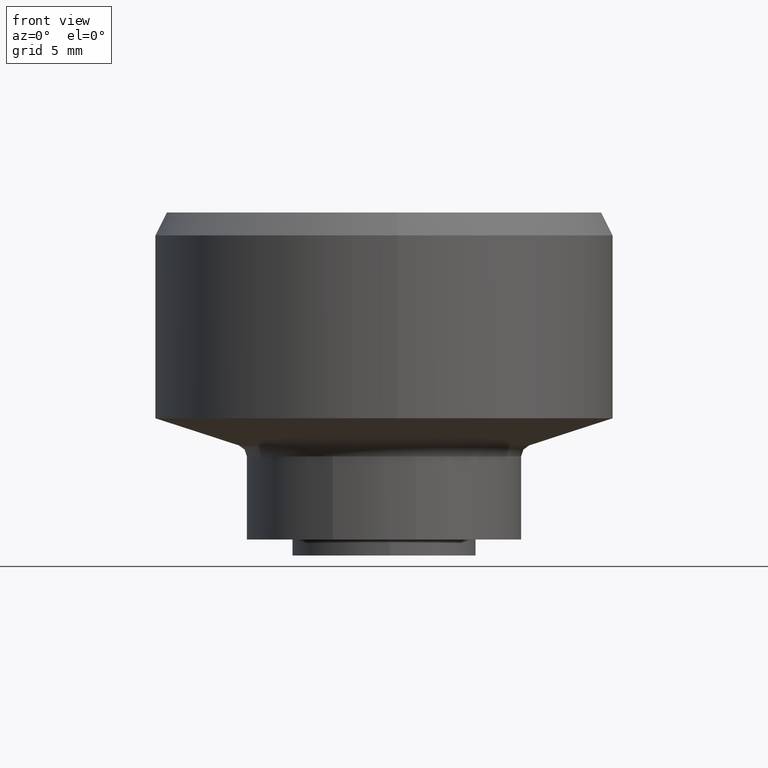
[diagram: clean part render]
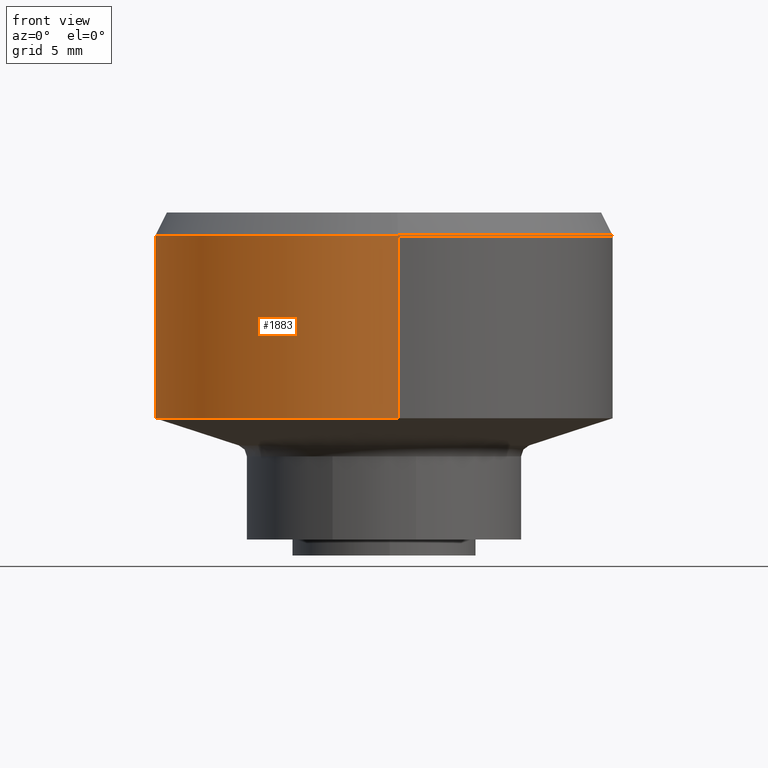
[diagram: same view with one face highlighted and labeled with its STEP entity id]
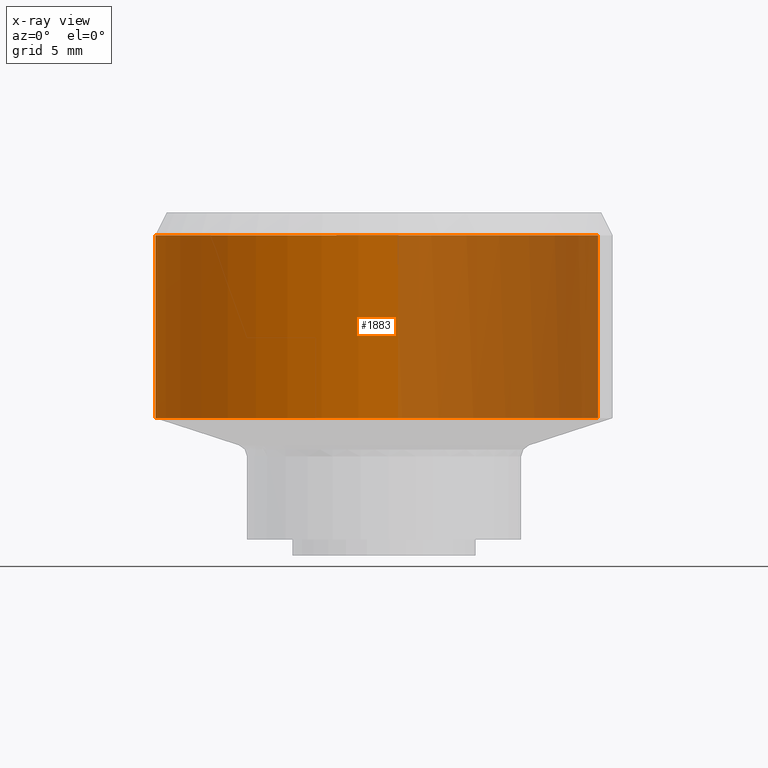
[diagram: x-ray of the same camera — body ghosted, the highlighted face saturated]
A machine part, front view. The second image highlights one B-rep face of the part: STEP entity #1883.
The next image is the same camera in x-ray: the body ghosted, the highlighted face saturated — about 45% of this face is hidden behind the body in this view.
In plain terms, the highlighted face is a freeform B-spline surface patch.
Its self-contained STEP definition (entity closure, byte-faithful):
#1517=CARTESIAN_POINT('',(-10.0,0.0,6.0));
#1518=VERTEX_POINT('',#1517);
#1519=CARTESIAN_POINT('',(-2.503800040549187,9.681476403780438,6.000000000000188));
#1520=VERTEX_POINT('',#1519);
#1521=CARTESIAN_POINT('',(-10.0,0.0,6.0));
#1522=CARTESIAN_POINT('',(-10.0,7.742827278410307,5.999999999999999));
#1523=CARTESIAN_POINT('',(-2.503800040549187,9.681476403780438,6.000000000000188));
#1531=(BOUNDED_CURVE()B_SPLINE_CURVE(2,(#1521,#1522,#1523),.UNSPECIFIED.,.F.,.U.)B_SPLINE_CURVE_WITH_KNOTS((3,3),(0.0,0.207273770289423),.UNSPECIFIED.)CURVE()GEOMETRIC_REPRESENTATION_ITEM()RATIONAL_B_SPLINE_CURVE((1.0,0.757163672977323,0.916996154476451))REPRESENTATION_ITEM(''));
#1532=EDGE_CURVE('',#1518,#1520,#1531,.T.);
#1610=CARTESIAN_POINT('',(0.610484965659253,-9.981348010499573,6.000000000000002));
#1611=VERTEX_POINT('',#1610);
#1625=CARTESIAN_POINT('',(0.610484965659253,-9.981348010499573,6.000000000000002));
#1626=CARTESIAN_POINT('',(0.305527202091767,-10.0,6.0));
#1627=CARTESIAN_POINT('',(0.0,-10.0,6.0));
#1628=CARTESIAN_POINT('',(-10.000000000000002,-10.000000000000002,6.0));
#1629=CARTESIAN_POINT('',(-10.0,0.0,6.0));
#1637=(BOUNDED_CURVE()B_SPLINE_CURVE(2,(#1625,#1626,#1627,#1628,#1629),.UNSPECIFIED.,.F.,.U.)B_SPLINE_CURVE_WITH_KNOTS((3,2,3),(0.739332977097980,0.750000000000000,1.0),.UNSPECIFIED.)CURVE()GEOMETRIC_REPRESENTATION_ITEM()RATIONAL_B_SPLINE_CURVE((0.976072073512466,0.987502805308283,1.0,0.707106781186548,1.0))REPRESENTATION_ITEM(''));
#1638=EDGE_CURVE('',#1611,#1518,#1637,.T.);
#1661=CARTESIAN_POINT('',(9.361437562104159,3.516175019932858,6.000000000000001));
#1662=VERTEX_POINT('',#1661);
#1663=CARTESIAN_POINT('',(-2.503800040549187,9.681476403780438,6.000000000000188));
#1664=CARTESIAN_POINT('',(-1.272160680015326,10.000000000000002,6.000000000000001));
#1665=CARTESIAN_POINT('',(0.0,10.0,6.0));
#1666=CARTESIAN_POINT('',(6.926099690407489,10.0,6.0));
#1667=CARTESIAN_POINT('',(9.361437562104161,3.516175019932858,6.000000000000001));
#1675=(BOUNDED_CURVE()B_SPLINE_CURVE(2,(#1663,#1664,#1665,#1666,#1667),.UNSPECIFIED.,.F.,.U.)B_SPLINE_CURVE_WITH_KNOTS((3,2,3),(0.207273770289423,0.250000000000000,0.440284250603832),.UNSPECIFIED.)CURVE()GEOMETRIC_REPRESENTATION_ITEM()RATIONAL_B_SPLINE_CURVE((0.916996154476451,0.949943108209225,1.0,0.777068133404552,0.893499652175730))REPRESENTATION_ITEM(''));
#1676=EDGE_CURVE('',#1520,#1662,#1675,.T.);
#1759=CARTESIAN_POINT('',(9.361437409540869,3.516175426116772,14.000000000000011));
#1760=VERTEX_POINT('',#1759);
#1776=CARTESIAN_POINT('',(0.610485173869379,-9.981347883809157,14.000000454971101));
#1777=VERTEX_POINT('',#1776);
#1791=CARTESIAN_POINT('',(0.610485173869379,-9.981347883809157,14.000000454971101));
#1792=CARTESIAN_POINT('',(0.610484965659253,-9.981348010499573,6.000000000000002));
#1793=QUASI_UNIFORM_CURVE('',1,(#1791,#1792),.UNSPECIFIED.,.F.,.U.);
#1794=EDGE_CURVE('',#1777,#1611,#1793,.T.);
#1799=CARTESIAN_POINT('',(9.361437409540869,3.516175426116772,14.000000000000011));
#1800=CARTESIAN_POINT('',(9.361437562104159,3.516175019932858,6.000000000000001));
#1801=QUASI_UNIFORM_CURVE('',1,(#1799,#1800),.UNSPECIFIED.,.F.,.U.);
#1802=EDGE_CURVE('',#1760,#1662,#1801,.T.);
#1807=CARTESIAN_POINT('',(0.610485395348570,-9.981347984218667,14.199999999999999));
#1808=CARTESIAN_POINT('',(-9.370862588870097,-10.591833379567237,14.200000000000006));
#1809=CARTESIAN_POINT('',(-9.981347984218667,-0.610485395348570,14.199999999999999));
#1810=CARTESIAN_POINT('',(-10.591833379567237,9.370862588870097,14.200000000000006));
#1811=CARTESIAN_POINT('',(-0.610485395348570,9.981347984218667,14.199999999999999));
#1812=CARTESIAN_POINT('',(6.763695818030652,10.432372228693419,14.199999999999999));
#1813=CARTESIAN_POINT('',(9.361435787766570,3.516179743915722,14.200000000000010));
#1814=CARTESIAN_POINT('',(0.610485395348570,-9.981347984218667,5.795000000000000));
#1815=CARTESIAN_POINT('',(-9.370862588870097,-10.591833379567237,5.795000000000000));
#1816=CARTESIAN_POINT('',(-9.981347984218667,-0.610485395348570,5.795000000000000));
#1817=CARTESIAN_POINT('',(-10.591833379567237,9.370862588870097,5.795000000000000));
#1818=CARTESIAN_POINT('',(-0.610485395348570,9.981347984218667,5.795000000000000));
#1819=CARTESIAN_POINT('',(6.763695818030652,10.432372228693419,5.795000000000000));
#1820=CARTESIAN_POINT('',(9.361435787766570,3.516179743915722,5.795000000000001));
#1828=(BOUNDED_SURFACE()B_SPLINE_SURFACE(2,1,((#1807,#1814),(#1808,#1815),(#1809,#1816),(#1810,#1817),(#1811,#1818),(#1812,#1819),(#1813,#1820)),.UNSPECIFIED.,.F.,.F.,.U.)B_SPLINE_SURFACE_WITH_KNOTS((3,2,2,3),(2,2),(0.0,16.568542494923800,33.137084989847587,46.391918985786631),(0.0,8.405000000000003),.UNSPECIFIED.)GEOMETRIC_REPRESENTATION_ITEM()RATIONAL_B_SPLINE_SURFACE(((1.0,1.0),(0.707106781186548,0.707106781186548),(1.0,1.0),(0.707106781186548,0.707106781186548),(1.0,1.0),(0.765685424949238,0.765685424949238),(0.906274169979695,0.906274169979695)))REPRESENTATION_ITEM('')SURFACE());
#1829=CARTESIAN_POINT('',(-1.180342346569118,9.930095263636622,13.999999999999719));
#1830=VERTEX_POINT('',#1829);
#1831=CARTESIAN_POINT('',(-1.180342346569118,9.930095263636622,13.999999999999723));
#1832=CARTESIAN_POINT('',(-0.592241196520633,10.0,14.000000000000004));
#1833=CARTESIAN_POINT('',(0.0,10.0,14.0));
#1834=CARTESIAN_POINT('',(6.926099369391782,10.0,13.999999999999996));
#1835=CARTESIAN_POINT('',(9.361437409540869,3.516175426116772,14.000000000000014));
#1843=(BOUNDED_CURVE()B_SPLINE_CURVE(2,(#1831,#1832,#1833,#1834,#1835),.UNSPECIFIED.,.F.,.U.)B_SPLINE_CURVE_WITH_KNOTS((3,2,3),(0.229562473515593,0.250000000000000,0.440284243750536),.UNSPECIFIED.)CURVE()GEOMETRIC_REPRESENTATION_ITEM()RATIONAL_B_SPLINE_CURVE((0.956026754187785,0.976055948333587,1.0,0.777068141433688,0.893499643788913))REPRESENTATION_ITEM(''));
#1844=EDGE_CURVE('',#1830,#1760,#1843,.T.);
#1845=ORIENTED_EDGE('',*,*,#1844,.T.);
#1846=ORIENTED_EDGE('',*,*,#1802,.T.);
#1847=ORIENTED_EDGE('',*,*,#1676,.F.);
#1848=ORIENTED_EDGE('',*,*,#1532,.F.);
#1849=ORIENTED_EDGE('',*,*,#1638,.F.);
#1850=ORIENTED_EDGE('',*,*,#1794,.F.);
#1851=CARTESIAN_POINT('',(-10.0,0.0,14.0));
#1852=VERTEX_POINT('',#1851);
#1853=CARTESIAN_POINT('',(0.610485173869379,-9.981347883809157,14.000000454971104));
#1854=CARTESIAN_POINT('',(0.305527202712148,-10.0,14.000000000000007));
#1855=CARTESIAN_POINT('',(0.0,-10.0,14.0));
#1856=CARTESIAN_POINT('',(-10.000000000000002,-10.000000000000002,13.999999999999998));
#1857=CARTESIAN_POINT('',(-10.0,0.0,14.0));
#1865=(BOUNDED_CURVE()B_SPLINE_CURVE(2,(#1853,#1854,#1855,#1856,#1857),.UNSPECIFIED.,.F.,.U.)B_SPLINE_CURVE_WITH_KNOTS((3,2,3),(0.739332977076591,0.750000000000000,1.0),.UNSPECIFIED.)CURVE()GEOMETRIC_REPRESENTATION_ITEM()RATIONAL_B_SPLINE_CURVE((0.976072073466625,0.987502805283224,1.0,0.707106781186548,1.0))REPRESENTATION_ITEM(''));
#1866=EDGE_CURVE('',#1777,#1852,#1865,.T.);
#1867=ORIENTED_EDGE('',*,*,#1866,.T.);
#1868=CARTESIAN_POINT('',(-10.0,0.0,14.0));
#1869=CARTESIAN_POINT('',(-10.0,8.881745259510947,14.000000000000002));
#1870=CARTESIAN_POINT('',(-1.180342346569118,9.930095263636622,13.999999999999721));
#1878=(BOUNDED_CURVE()B_SPLINE_CURVE(2,(#1868,#1869,#1870),.UNSPECIFIED.,.F.,.U.)B_SPLINE_CURVE_WITH_KNOTS((3,3),(0.0,0.229562473515593),.UNSPECIFIED.)CURVE()GEOMETRIC_REPRESENTATION_ITEM()RATIONAL_B_SPLINE_CURVE((1.0,0.731050832852961,0.956026754187785))REPRESENTATION_ITEM(''));
#1879=EDGE_CURVE('',#1852,#1830,#1878,.T.);
#1880=ORIENTED_EDGE('',*,*,#1879,.T.);
#1881=EDGE_LOOP('',(#1845,#1846,#1847,#1848,#1849,#1850,#1867,#1880));
#1882=FACE_OUTER_BOUND('',#1881,.T.);
#1883=ADVANCED_FACE('',(#1882),#1828,.T.);